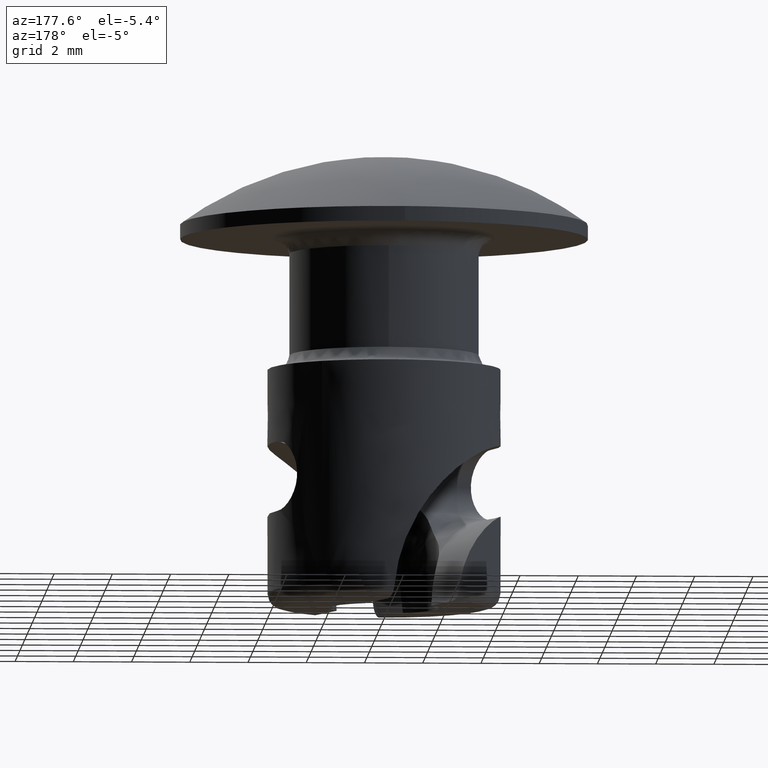
[diagram: clean part render]
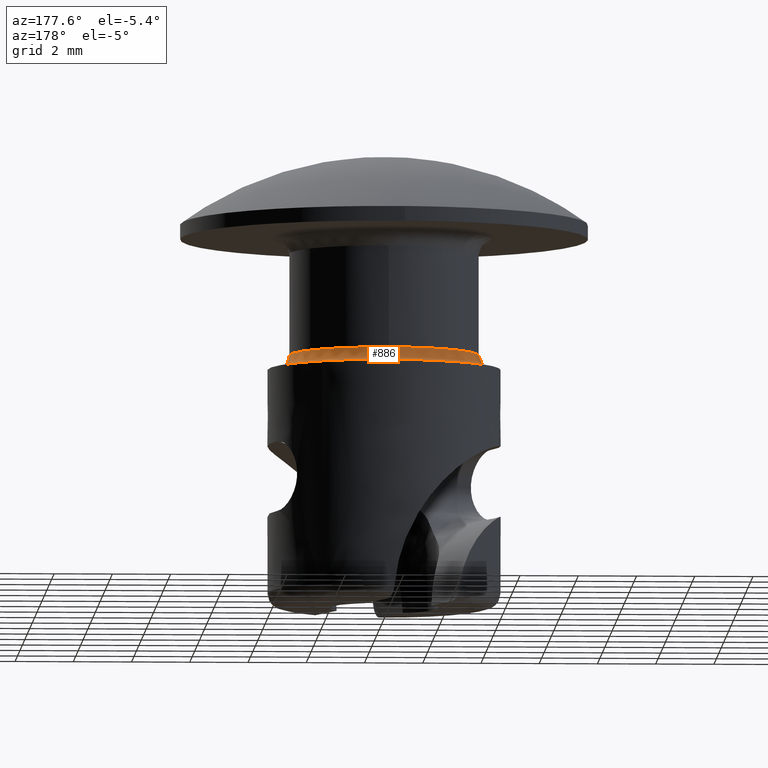
[diagram: same view with one face highlighted and labeled with its STEP entity id]
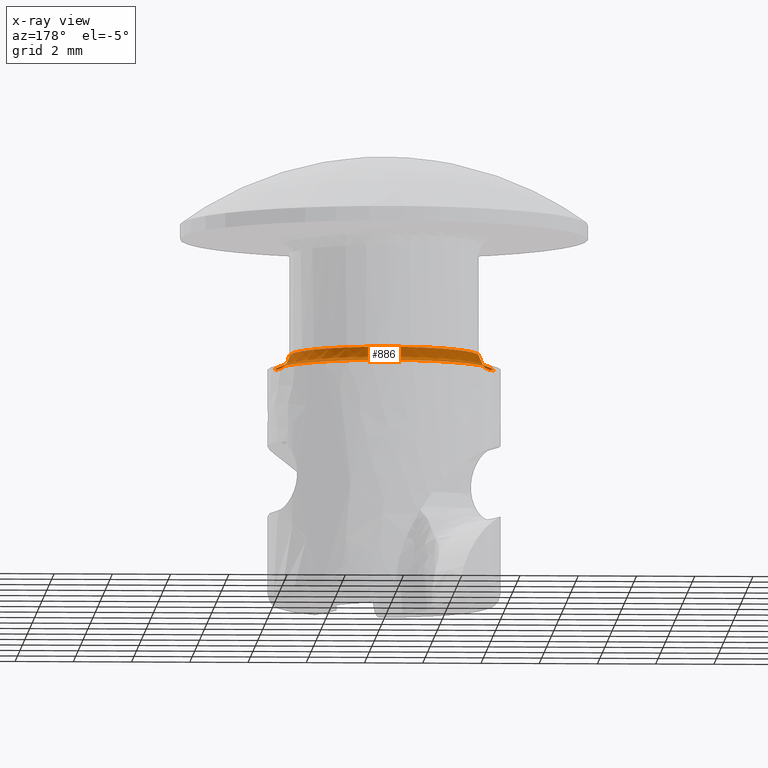
[diagram: x-ray of the same camera — body ghosted, the highlighted face saturated]
A machine part, auxiliary view. The second image highlights one B-rep face of the part: STEP entity #886.
The next image is the same camera in x-ray: the body ghosted, the highlighted face saturated — about 0% of this face is hidden behind the body in this view.
In plain terms, the highlighted face is a freeform B-spline surface patch.
Its self-contained STEP definition (entity closure, byte-faithful):
#575=CARTESIAN_POINT('',(-0.028360009897156,3.249876260696236,-3.999992046796190));
#576=VERTEX_POINT('',#575);
#577=CARTESIAN_POINT('',(-3.249743463395090,0.040834080009138,-3.999992092208273));
#578=VERTEX_POINT('',#577);
#579=CARTESIAN_POINT('',(-0.028360009897156,3.249876260696236,-3.999992046796190));
#580=CARTESIAN_POINT('',(-3.209769653469214,3.222113723987615,-3.999992091924728));
#581=CARTESIAN_POINT('',(-3.249743463395090,0.040834080009138,-3.999992092208273));
#589=(BOUNDED_CURVE()B_SPLINE_CURVE(2,(#579,#580,#581),.UNSPECIFIED.,.F.,.U.)B_SPLINE_CURVE_WITH_KNOTS((3,3),(0.251539827643694,0.497784596251346),.UNSPECIFIED.)CURVE()GEOMETRIC_REPRESENTATION_ITEM()RATIONAL_B_SPLINE_CURVE((0.996414182442785,0.711474335359443,0.994854986887114))REPRESENTATION_ITEM(''));
#590=EDGE_CURVE('',#576,#578,#589,.T.);
#657=CARTESIAN_POINT('',(3.250000000000000,0.0,-3.999992000000230));
#658=VERTEX_POINT('',#657);
#659=CARTESIAN_POINT('',(3.250000000000000,0.0,-3.999992000000230));
#660=CARTESIAN_POINT('',(3.250000000000016,3.249999999999897,-3.999992000289871));
#661=CARTESIAN_POINT('',(2.377147E-012,3.249999999999762,-3.999992046393890));
#662=CARTESIAN_POINT('',(-0.014180274894672,3.249999999999762,-3.999992046595049));
#663=CARTESIAN_POINT('',(-0.028360009897156,3.249876260696236,-3.999992046796190));
#671=(BOUNDED_CURVE()B_SPLINE_CURVE(2,(#659,#660,#661,#662,#663),.UNSPECIFIED.,.F.,.U.)B_SPLINE_CURVE_WITH_KNOTS((3,2,3),(0.0,0.250000000000000,0.251539827643694),.UNSPECIFIED.)CURVE()GEOMETRIC_REPRESENTATION_ITEM()RATIONAL_B_SPLINE_CURVE((1.0,0.707106781186547,1.0,0.998195979700082,0.996414182442785))REPRESENTATION_ITEM(''));
#672=EDGE_CURVE('',#658,#576,#671,.T.);
#678=CARTESIAN_POINT('',(3.249743463395089,-0.040834080009138,-3.999992092208274));
#679=VERTEX_POINT('',#678);
#693=CARTESIAN_POINT('',(3.249743463395090,-0.040834080009138,-3.999992092208274));
#694=CARTESIAN_POINT('',(3.249999999997639,-0.020417845839146,-3.999992046104252));
#695=CARTESIAN_POINT('',(3.250000000000000,0.0,-3.999992000000230));
#703=(BOUNDED_CURVE()B_SPLINE_CURVE(2,(#693,#694,#695),.UNSPECIFIED.,.F.,.U.)B_SPLINE_CURVE_WITH_KNOTS((3,3),(0.997784596251346,1.0),.UNSPECIFIED.)CURVE()GEOMETRIC_REPRESENTATION_ITEM()RATIONAL_B_SPLINE_CURVE((0.994854986887114,0.997404493060342,1.0))REPRESENTATION_ITEM(''));
#704=EDGE_CURVE('',#679,#658,#703,.T.);
#734=CARTESIAN_POINT('',(-3.749703915106265,0.047122649631105,-4.499992000000217));
#735=VERTEX_POINT('',#734);
#749=CARTESIAN_POINT('',(3.749703915106266,-0.047122649631105,-4.499992000000230));
#750=VERTEX_POINT('',#749);
#780=CARTESIAN_POINT('',(3.249743463395090,-0.040834080009138,-3.999992092208273));
#781=CARTESIAN_POINT('',(3.249743520729014,-0.040836856012102,-4.499991999343100));
#782=CARTESIAN_POINT('',(3.749703915106266,-0.047122649631105,-4.499992000000230));
#790=(BOUNDED_CURVE()B_SPLINE_CURVE(2,(#780,#781,#782),.UNSPECIFIED.,.F.,.U.)B_SPLINE_CURVE_WITH_KNOTS((3,3),(-1.725134454163999,-0.274865358065954),.UNSPECIFIED.)CURVE()GEOMETRIC_REPRESENTATION_ITEM()RATIONAL_B_SPLINE_CURVE((0.883342082176644,0.624617258106231,0.883342149172182))REPRESENTATION_ITEM(''));
#791=EDGE_CURVE('',#679,#750,#790,.T.);
#796=CARTESIAN_POINT('',(-3.249743463395090,0.040834080009138,-3.999992092208272));
#797=CARTESIAN_POINT('',(-3.249743520729013,0.040836856012102,-4.499991999343092));
#798=CARTESIAN_POINT('',(-3.749703915106265,0.047122649631105,-4.499992000000218));
#806=(BOUNDED_CURVE()B_SPLINE_CURVE(2,(#796,#797,#798),.UNSPECIFIED.,.F.,.U.)B_SPLINE_CURVE_WITH_KNOTS((3,3),(-1.725134454164002,-0.274865358065955),.UNSPECIFIED.)CURVE()GEOMETRIC_REPRESENTATION_ITEM()RATIONAL_B_SPLINE_CURVE((0.883342082176646,0.624617258106231,0.883342149172181))REPRESENTATION_ITEM(''));
#807=EDGE_CURVE('',#578,#735,#806,.T.);
#812=CARTESIAN_POINT('',(3.250953615354651,-0.040854838515779,-3.965223445443607));
#813=CARTESIAN_POINT('',(3.291808453870429,3.210098776838873,-3.965223445443606));
#814=CARTESIAN_POINT('',(0.040854838515779,3.250953615354651,-3.965223445443607));
#815=CARTESIAN_POINT('',(-3.210098776838873,3.291808453870429,-3.965223445443606));
#816=CARTESIAN_POINT('',(-3.250953615354651,0.040854838515779,-3.965223445443607));
#817=CARTESIAN_POINT('',(3.210977882847664,-0.040352462201208,-4.538760587009106));
#818=CARTESIAN_POINT('',(3.251330345048872,3.170625420646457,-4.538760587009107));
#819=CARTESIAN_POINT('',(0.040352462201208,3.210977882847664,-4.538760587009106));
#820=CARTESIAN_POINT('',(-3.170625420646457,3.251330345048872,-4.538760587009107));
#821=CARTESIAN_POINT('',(-3.210977882847664,0.040352462201208,-4.538760587009106));
#822=CARTESIAN_POINT('',(3.784469739204387,-0.047559552782540,-4.498781681766112));
#823=CARTESIAN_POINT('',(3.832029291986926,3.736910186421846,-4.498781681766111));
#824=CARTESIAN_POINT('',(0.047559552782540,3.784469739204387,-4.498781681766112));
#825=CARTESIAN_POINT('',(-3.736910186421846,3.832029291986926,-4.498781681766111));
#826=CARTESIAN_POINT('',(-3.784469739204387,0.047559552782540,-4.498781681766112));
#834=(BOUNDED_SURFACE()B_SPLINE_SURFACE(2,2,((#812,#817,#822),(#813,#818,#823),(#814,#819,#824),(#815,#820,#825),(#816,#821,#826)),.UNSPECIFIED.,.F.,.F.,.U.)B_SPLINE_SURFACE_WITH_KNOTS((3,2,3),(3,3),(0.0,6.270809886263397,12.541619772526790),(0.0,0.911186972831271),.UNSPECIFIED.)GEOMETRIC_REPRESENTATION_ITEM()RATIONAL_B_SPLINE_SURFACE(((0.910479795090997,0.597479572841838,0.910479806786608),(0.643806437242182,0.422481857576905,0.643806445512228),(0.910479795090997,0.597479572841838,0.910479806786608),(0.643806437242182,0.422481857576905,0.643806445512228),(0.910479795090997,0.597479572841838,0.910479806786608)))REPRESENTATION_ITEM('')SURFACE());
#835=CARTESIAN_POINT('',(3.750000000000000,0.0,-4.499992000000230));
#836=VERTEX_POINT('',#835);
#837=CARTESIAN_POINT('',(-3.749703915106265,0.047122649631105,-4.499992000000217));
#838=CARTESIAN_POINT('',(-3.746481588859002,0.306840163178089,-4.499992000000209));
#839=CARTESIAN_POINT('',(-3.698220556788205,0.718764919992403,-4.499992000000226));
#840=CARTESIAN_POINT('',(-3.523897356711245,1.321658476580127,-4.499992000000225));
#841=CARTESIAN_POINT('',(-3.310625380531780,1.788993371367053,-4.499992000000195));
#842=CARTESIAN_POINT('',(-3.020768199263933,2.239443475188069,-4.499992000000234));
#843=CARTESIAN_POINT('',(-2.714857887480595,2.602564906977803,-4.499992000000209));
#844=CARTESIAN_POINT('',(-2.318977572501165,2.963545781222402,-4.499992000000233));
#845=CARTESIAN_POINT('',(-1.931931048587727,3.225892473891399,-4.499992000000219));
#846=CARTESIAN_POINT('',(-1.495717964708417,3.447684729799823,-4.499992000000230));
#847=CARTESIAN_POINT('',(-1.007868711753381,3.629864944604955,-4.499992000000187));
#848=CARTESIAN_POINT('',(-0.412838822955346,3.745738889398314,-4.499992000000330));
#849=CARTESIAN_POINT('',(0.138668474749685,3.757421758819263,-4.499991999999931));
#850=CARTESIAN_POINT('',(0.655938883341275,3.703397655127397,-4.499992000000284));
#851=CARTESIAN_POINT('',(1.155341182211460,3.583599609098046,-4.499992000000229));
#852=CARTESIAN_POINT('',(1.636831132209039,3.384930998088222,-4.499992000000191));
#853=CARTESIAN_POINT('',(2.055869429168410,3.146901470354146,-4.499992000000312));
#854=CARTESIAN_POINT('',(2.443994764056676,2.860490289008348,-4.499991999999815));
#855=CARTESIAN_POINT('',(2.771905625424758,2.538472335293701,-4.499992000000349));
#856=CARTESIAN_POINT('',(3.054995275635809,2.187220323325731,-4.499992000000295));
#857=CARTESIAN_POINT('',(3.295120420656881,1.813768661675450,-4.499992000000160));
#858=CARTESIAN_POINT('',(3.499290583090733,1.376635184734036,-4.499992000000248));
#859=CARTESIAN_POINT('',(3.648045317265606,0.910038067559702,-4.499992000000194));
#860=CARTESIAN_POINT('',(3.731798454583513,0.458349145301538,-4.499992000000528));
#861=CARTESIAN_POINT('',(3.750002542990592,0.145143778014935,-4.499991999999432));
#862=CARTESIAN_POINT('',(3.750000000000000,0.0,-4.499992000000230));
#863=B_SPLINE_CURVE_WITH_KNOTS('',3,(#837,#838,#839,#840,#841,#842,#843,#844,#845,#846,#847,#848,#849,#850,#851,#852,#853,#854,#855,#856,#857,#858,#859,#860,#861,#862),.UNSPECIFIED.,.F.,.U.,(4,1,1,1,1,1,1,1,1,1,1,1,1,1,1,1,1,1,1,1,1,1,1,4),(0.000000023333998,0.779202051817574,1.237554739485907,1.879247953461301,2.314686173212440,2.841796120023165,3.300150804193800,3.918932979277702,4.239782966093379,4.766886889523960,5.477342715224014,6.050274390249868,6.416957892067281,7.035728065819226,7.585757913631884,7.975361260859851,8.479552112044388,9.029578668653587,9.350426200624034,9.831702223153650,10.358808733138490,10.794249629641310,11.298434776589740,11.733866820610460),.UNSPECIFIED.);
#864=EDGE_CURVE('',#735,#836,#863,.T.);
#865=ORIENTED_EDGE('',*,*,#864,.F.);
#866=ORIENTED_EDGE('',*,*,#807,.F.);
#867=ORIENTED_EDGE('',*,*,#590,.F.);
#868=ORIENTED_EDGE('',*,*,#672,.F.);
#869=ORIENTED_EDGE('',*,*,#704,.F.);
#870=ORIENTED_EDGE('',*,*,#791,.T.);
#871=CARTESIAN_POINT('',(3.750000000000000,0.0,-4.499992000000230));
#872=CARTESIAN_POINT('',(3.749999999671461,-0.023562255003858,-4.499992000000229));
#873=CARTESIAN_POINT('',(3.749703915106266,-0.047122649631105,-4.499992000000230));
#881=(BOUNDED_CURVE()B_SPLINE_CURVE(2,(#871,#872,#873),.UNSPECIFIED.,.F.,.U.)B_SPLINE_CURVE_WITH_KNOTS((3,3),(0.0,0.002215704081873),.UNSPECIFIED.)CURVE()GEOMETRIC_REPRESENTATION_ITEM()RATIONAL_B_SPLINE_CURVE((1.0,0.997404141198088,0.994854295635723))REPRESENTATION_ITEM(''));
#882=EDGE_CURVE('',#836,#750,#881,.T.);
#883=ORIENTED_EDGE('',*,*,#882,.F.);
#884=EDGE_LOOP('',(#865,#866,#867,#868,#869,#870,#883));
#885=FACE_OUTER_BOUND('',#884,.T.);
#886=ADVANCED_FACE('',(#885),#834,.F.);